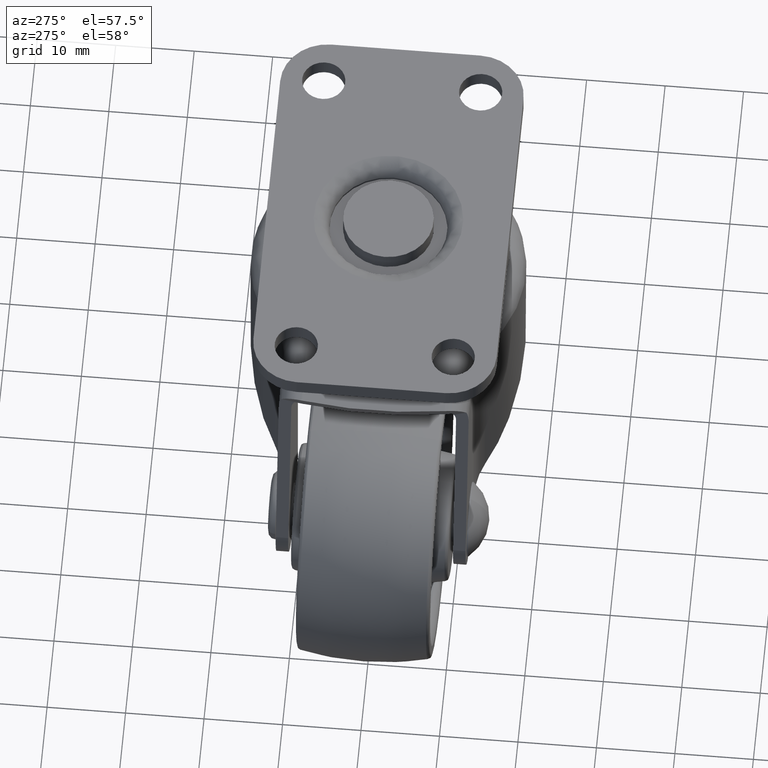
[diagram: clean part render]
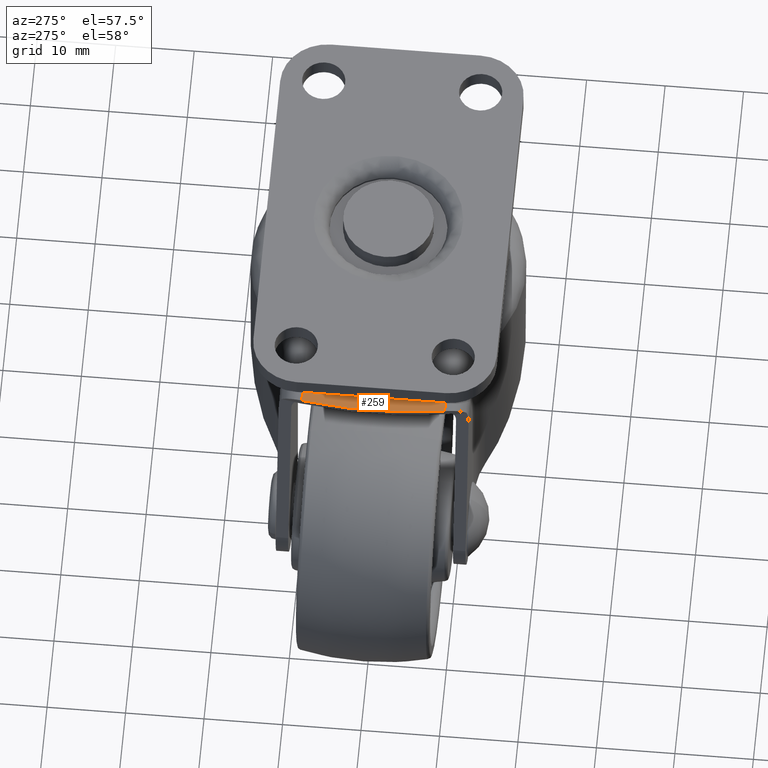
[diagram: same view with one face highlighted and labeled with its STEP entity id]
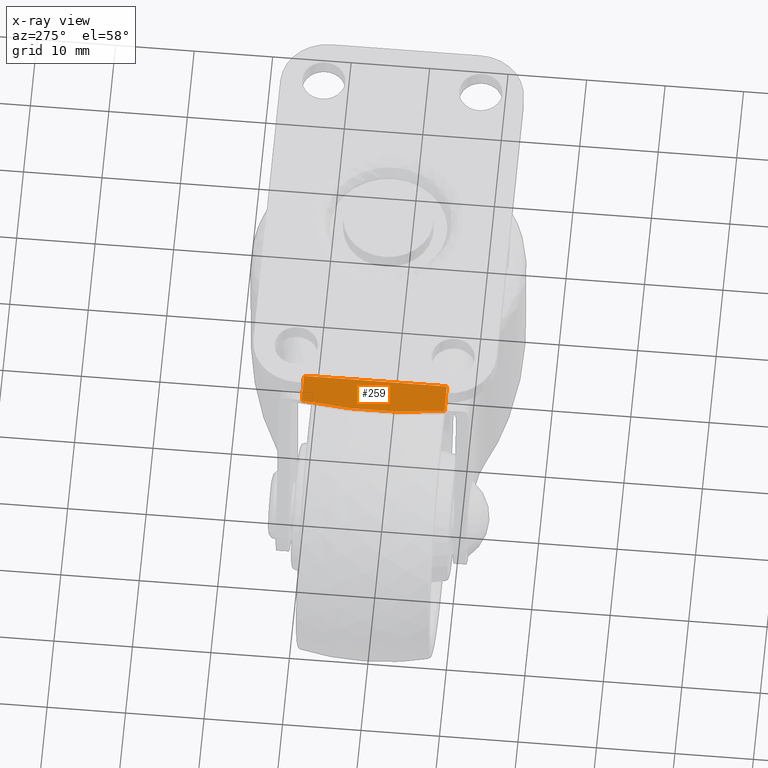
[diagram: x-ray of the same camera — body ghosted, the highlighted face saturated]
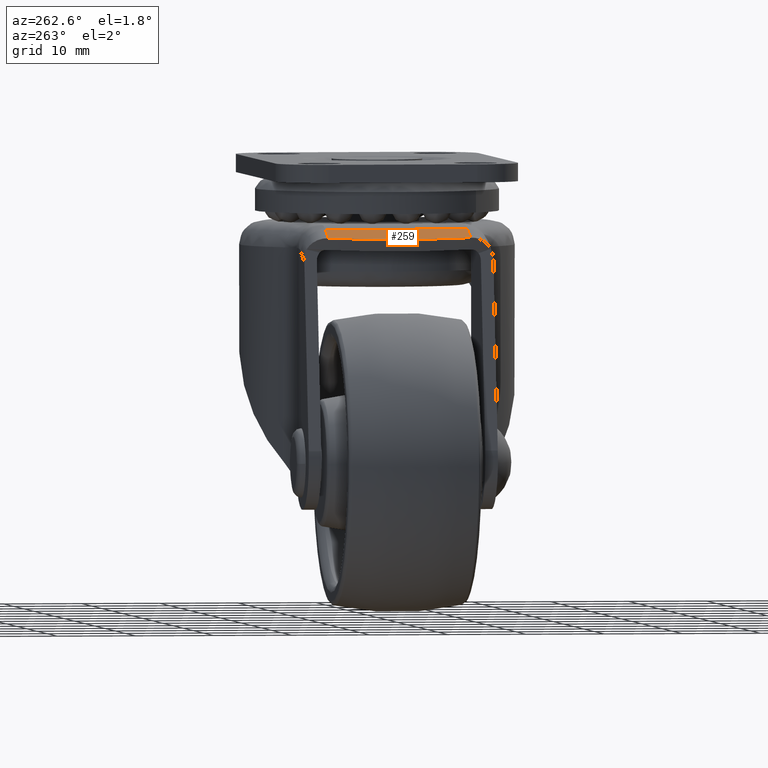
[diagram: same view with one face highlighted and labeled with its STEP entity id]
A machine part, auxiliary view. The second image highlights one B-rep face of the part: STEP entity #259.
The next image is the same camera in x-ray: the body ghosted, the highlighted face saturated — about 0% of this face is hidden behind the body in this view.
A second angle (auxiliary view) of the same face is appended — the face is thin or edge-on in the first view.
In plain terms, the highlighted planar face has unit normal (0.3141, 0, -0.9494).
Its self-contained STEP definition (entity closure, byte-faithful):
#259=ADVANCED_FACE('',(#779),#778,.F.);
#778=PLANE('',#2904);
#779=FACE_OUTER_BOUND('',#2905,.T.);
#2901=CARTESIAN_POINT('',(1.27581719891E+00,-1.09200000000E+01,2.97339265652E+01));
#2902=DIRECTION('',(3.14132549606E-01,0.00000000000E+00,-9.49379134634E-01));
#2903=DIRECTION('',(-9.49379134634E-01,0.00000000000E+00,-3.14132549606E-01));
#2904=AXIS2_PLACEMENT_3D('',#2901,#2902,#2903);
#2905=EDGE_LOOP('',(#5413,#5414,#5415,#5416));
#5413=ORIENTED_EDGE('',*,*,#6361,.T.);
#5414=ORIENTED_EDGE('',*,*,#6363,.T.);
#5415=ORIENTED_EDGE('',*,*,#6371,.T.);
#5416=ORIENTED_EDGE('',*,*,#6367,.T.);
#6361=EDGE_CURVE('',#6972,#6933,#7434,.T.);
#6363=EDGE_CURVE('',#6933,#7440,#7447,.T.);
#6367=EDGE_CURVE('',#7472,#6972,#7473,.T.);
#6371=EDGE_CURVE('',#7440,#7472,#7497,.T.);
#6933=VERTEX_POINT('',#10405);
#6972=VERTEX_POINT('',#10430);
#7434=LINE('',#10844,#10845);
#7440=VERTEX_POINT('',#10847);
#7447=LINE('',#10868,#10869);
#7472=VERTEX_POINT('',#10881);
#7473=LINE('',#10882,#10883);
#7497=CIRCLE('',#10914,6.83502891597E+01);
#10405=CARTESIAN_POINT('',(8.52300091165E-01,9.10000000000E+00,2.95937923463E+01));
#10430=CARTESIAN_POINT('',(8.52300091165E-01,-9.10000000000E+00,2.95937923463E+01));
#10844=CARTESIAN_POINT('',(8.52300091165E-01,-9.10000000000E+00,2.95937923463E+01));
#10845=VECTOR('',#10846,1.82000000000E+01);
#10846=DIRECTION('',(0.00000000000E+00,1.00000000000E+00,0.00000000000E+00));
#10847=CARTESIAN_POINT('',(-2.22231601907E+00,9.10000000000E+00,2.85764569505E+01));
#10868=CARTESIAN_POINT('',(8.52300091165E-01,9.10000000000E+00,2.95937923463E+01));
#10869=VECTOR('',#10870,3.23855454375E+00);
#10870=DIRECTION('',(-9.49379134641E-01,0.00000000000E+00,-3.14132549585E-01));
#10881=CARTESIAN_POINT('',(-2.22231601907E+00,-9.10000000000E+00,2.85764569505E+01));
#10882=CARTESIAN_POINT('',(-2.22231601907E+00,-9.10000000000E+00,2.85764569505E+01));
#10883=VECTOR('',#10884,3.23855454375E+00);
#10884=DIRECTION('',(9.49379134641E-01,0.00000000000E+00,3.14132549585E-01));
#10911=CARTESIAN_POINT('',(6.20903393745E+01,4.27990737616E-14,4.98563626000E+01));
#10912=DIRECTION('',(-3.14132549606E-01,1.15879528195E-15,9.49379134634E-01));
#10913=DIRECTION('',(9.40927334531E-01,-1.33137695712E-01,3.11336000347E-01));
#10914=AXIS2_PLACEMENT_3D('',#10911,#10912,#10913);